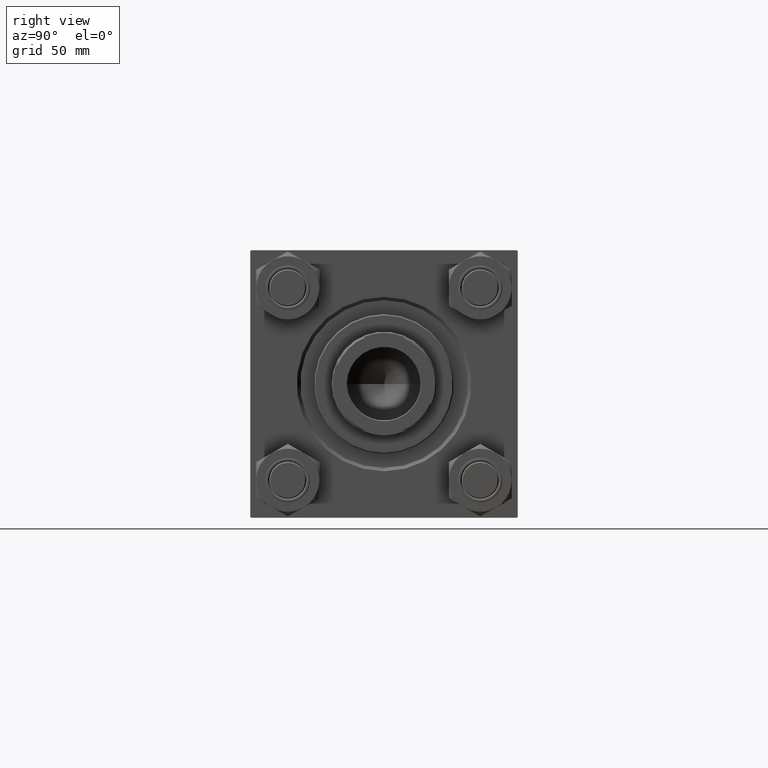
[diagram: clean part render]
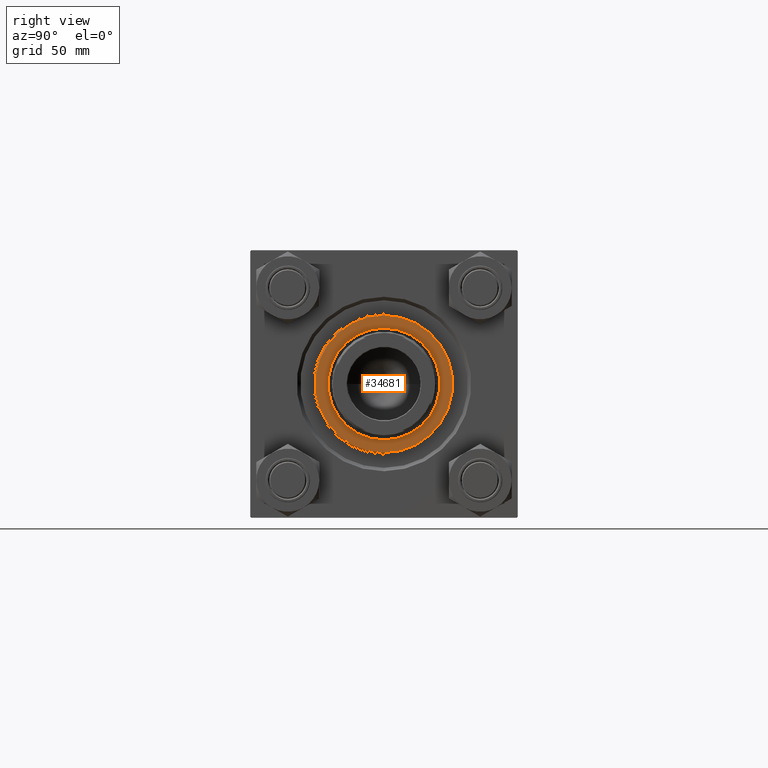
[diagram: same view with one face highlighted and labeled with its STEP entity id]
A machine part, right view. The second image highlights one B-rep face of the part: STEP entity #34681.
In plain terms, the highlighted planar face has unit normal (1, 0, -0).
Its self-contained STEP definition (entity closure, byte-faithful):
#1426 = AXIS2_PLACEMENT_3D ( 'NONE', #13596, #40777, #32671 ) ;
#2600 = CARTESIAN_POINT ( 'NONE',  ( 29.50000000000000000, 3.643324227463375391E-15, 37.69999999999999574 ) ) ;
#2677 = CARTESIAN_POINT ( 'NONE',  ( 0.000000000000000000, 0.000000000000000000, 37.69999999999999574 ) ) ;
#3666 = CARTESIAN_POINT ( 'NONE',  ( 0.000000000000000000, 0.000000000000000000, 37.69999999999999574 ) ) ;
#3745 = ORIENTED_EDGE ( 'NONE', *, *, #50020, .F. ) ;
#6044 = DIRECTION ( 'NONE',  ( 1.000000000000000000, 0.000000000000000000, 0.000000000000000000 ) ) ;
#6427 = VERTEX_POINT ( 'NONE', #2600 ) ;
#6511 = VERTEX_POINT ( 'NONE', #21654 ) ;
#6540 = DIRECTION ( 'NONE',  ( 0.000000000000000000, 0.000000000000000000, 1.000000000000000000 ) ) ;
#8261 = EDGE_CURVE ( 'NONE', #6511, #6427, #27741, .T. ) ;
#8749 = ORIENTED_EDGE ( 'NONE', *, *, #25742, .F. ) ;
#9232 = EDGE_LOOP ( 'NONE', ( #31656, #48888 ) ) ;
#9785 = DIRECTION ( 'NONE',  ( 0.000000000000000000, 0.000000000000000000, 1.000000000000000000 ) ) ;
#10612 = CIRCLE ( 'NONE', #12365, 29.50000000000000000 ) ;
#10969 = FACE_BOUND ( 'NONE', #40553, .T. ) ;
#11479 = FACE_OUTER_BOUND ( 'NONE', #9232, .T. ) ;
#11732 = CARTESIAN_POINT ( 'NONE',  ( 0.000000000000000000, 0.000000000000000000, 37.69999999999999574 ) ) ;
#12365 = AXIS2_PLACEMENT_3D ( 'NONE', #21795, #6540, #6044 ) ;
#13596 = CARTESIAN_POINT ( 'NONE',  ( 0.000000000000000000, 0.000000000000000000, 37.69999999999999574 ) ) ;
#17947 = AXIS2_PLACEMENT_3D ( 'NONE', #11732, #22922, #18837 ) ;
#18837 = DIRECTION ( 'NONE',  ( 1.000000000000000000, 0.000000000000000000, -0.000000000000000000 ) ) ;
#19307 = VERTEX_POINT ( 'NONE', #25085 ) ;
#19342 = PLANE ( 'NONE',  #17947 ) ;
#21231 = VERTEX_POINT ( 'NONE', #29957 ) ;
#21654 = CARTESIAN_POINT ( 'NONE',  ( -29.50000000000000000, 0.000000000000000000, 37.69999999999999574 ) ) ;
#21731 = AXIS2_PLACEMENT_3D ( 'NONE', #3666, #23725, #22712 ) ;
#21795 = CARTESIAN_POINT ( 'NONE',  ( 0.000000000000000000, 0.000000000000000000, 37.69999999999999574 ) ) ;
#22712 = DIRECTION ( 'NONE',  ( 1.000000000000000000, 0.000000000000000000, 0.000000000000000000 ) ) ;
#22922 = DIRECTION ( 'NONE',  ( 0.000000000000000000, 0.000000000000000000, 1.000000000000000000 ) ) ;
#23725 = DIRECTION ( 'NONE',  ( 0.000000000000000000, 0.000000000000000000, 1.000000000000000000 ) ) ;
#24965 = CIRCLE ( 'NONE', #1426, 24.00000000000000355 ) ;
#25085 = CARTESIAN_POINT ( 'NONE',  ( 24.00000000000000355, 0.000000000000000000, 37.69999999999999574 ) ) ;
#25742 = EDGE_CURVE ( 'NONE', #19307, #21231, #46876, .T. ) ;
#27741 = CIRCLE ( 'NONE', #49591, 29.50000000000000000 ) ;
#29957 = CARTESIAN_POINT ( 'NONE',  ( -24.00000000000000355, 2.939152317953648289E-15, 37.69999999999999574 ) ) ;
#31656 = ORIENTED_EDGE ( 'NONE', *, *, #8261, .T. ) ;
#32671 = DIRECTION ( 'NONE',  ( 1.000000000000000000, 0.000000000000000000, 0.000000000000000000 ) ) ;
#34681 = ADVANCED_FACE ( 'NONE', ( #10969, #11479 ), #19342, .T. ) ;
#36129 = EDGE_CURVE ( 'NONE', #6427, #6511, #10612, .T. ) ;
#40553 = EDGE_LOOP ( 'NONE', ( #8749, #3745 ) ) ;
#40777 = DIRECTION ( 'NONE',  ( 0.000000000000000000, 0.000000000000000000, 1.000000000000000000 ) ) ;
#44829 = DIRECTION ( 'NONE',  ( 1.000000000000000000, 0.000000000000000000, 0.000000000000000000 ) ) ;
#46876 = CIRCLE ( 'NONE', #21731, 24.00000000000000355 ) ;
#48888 = ORIENTED_EDGE ( 'NONE', *, *, #36129, .T. ) ;
#49591 = AXIS2_PLACEMENT_3D ( 'NONE', #2677, #9785, #44829 ) ;
#50020 = EDGE_CURVE ( 'NONE', #21231, #19307, #24965, .T. ) ;